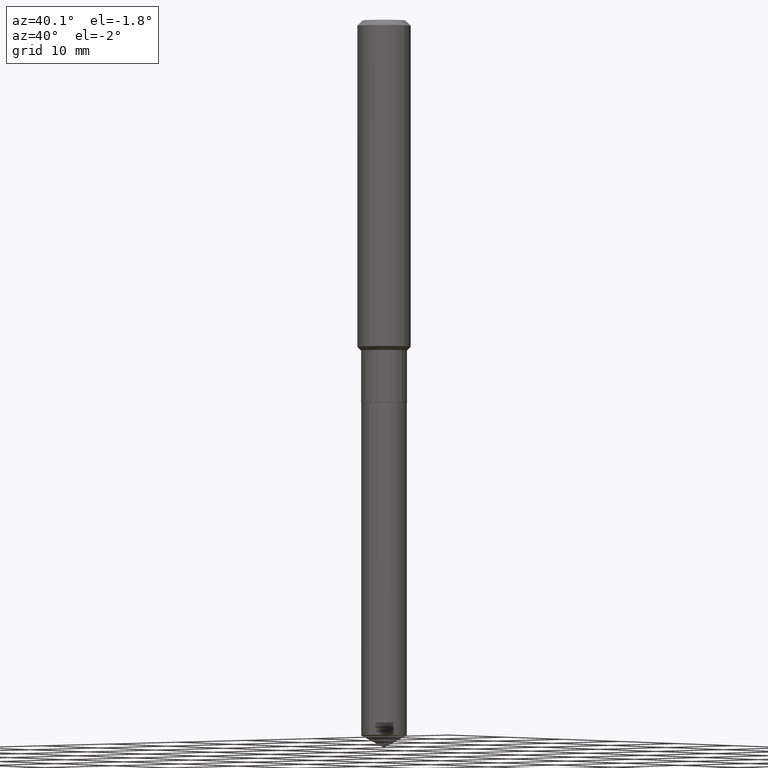
[diagram: clean part render]
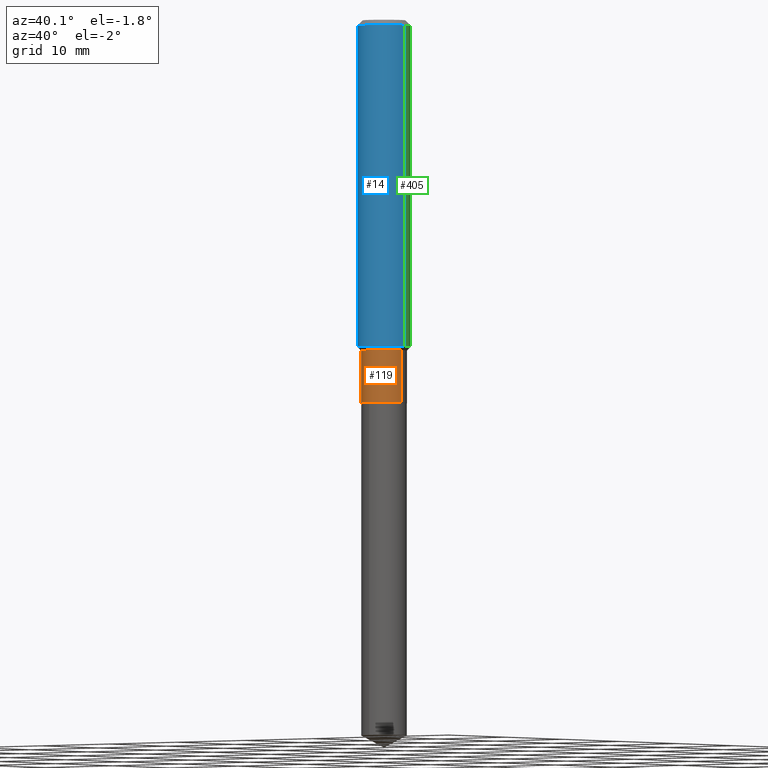
[diagram: same view with three faces highlighted in distinct colors, each labeled with its STEP entity id]
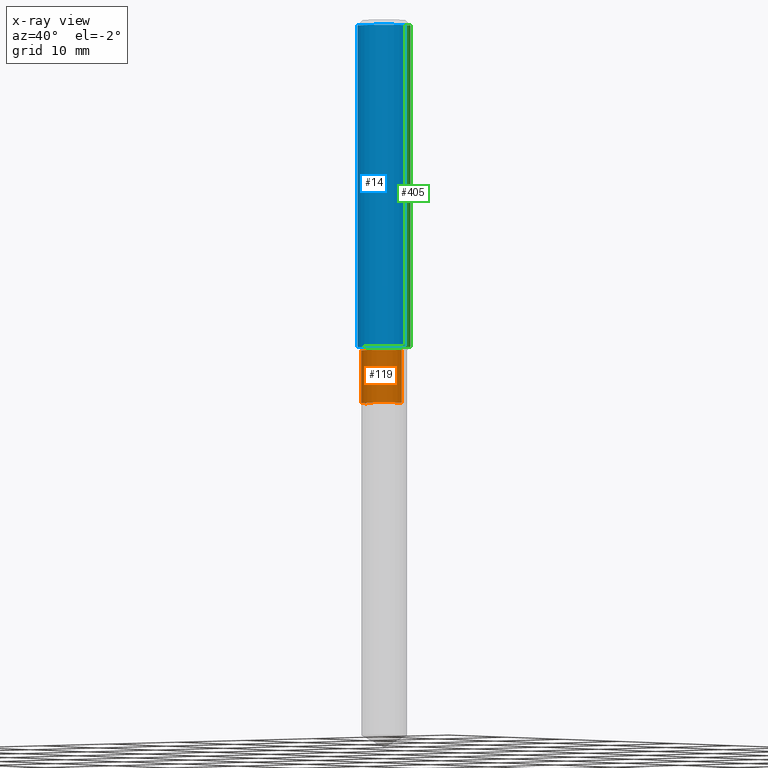
[diagram: x-ray of the same camera — body ghosted, the three highlighted faces saturated]
A machine part, auxiliary view with three faces highlighted in distinct colors.
The next image is the same camera in x-ray (body ghosted, the three faces saturated) — at least one of them is partly hidden behind the body in this view.
Their STEP definitions:

[orange] entity #119 — the highlighted cylindrical surface (edge-blend (fillet) strip) has radius 2.5794 mm, axis along (-0, 0, 1).
#11 = DIRECTION ( 'NONE',  ( 1.000000000000000000, -6.982962677686266711E-15, 0.000000000000000000 ) ) ;
#31 = EDGE_CURVE ( 'NONE', #77, #254, #470, .T. ) ;
#51 = CARTESIAN_POINT ( 'NONE',  ( 0.000000000000000000, 0.000000000000000000, 0.000000000000000000 ) ) ;
#52 = LINE ( 'NONE', #395, #117 ) ;
#55 = AXIS2_PLACEMENT_3D ( 'NONE', #201, #359, #11 ) ;
#66 = ORIENTED_EDGE ( 'NONE', *, *, #289, .F. ) ;
#77 = VERTEX_POINT ( 'NONE', #98 ) ;
#84 = CIRCLE ( 'NONE', #435, 0.1015500000000000014 ) ;
#87 = FACE_OUTER_BOUND ( 'NONE', #424, .T. ) ;
#90 = CARTESIAN_POINT ( 'NONE',  ( 0.1015499999999999736, -5.825885761993670479E-15, -1.465500000000000247 ) ) ;
#98 = CARTESIAN_POINT ( 'NONE',  ( 0.1015500000000000014, -6.639750062078007786E-15, -1.698600000000000332 ) ) ;
#104 = DIRECTION ( 'NONE',  ( 1.000000000000000000, -6.982962677686264344E-15, 0.000000000000000000 ) ) ;
#117 = VECTOR ( 'NONE', #158, 39.37007874015748143 ) ;
#119 = ADVANCED_FACE ( 'NONE', ( #87 ), #353, .T. ) ;
#147 = EDGE_CURVE ( 'NONE', #463, #77, #84, .T. ) ;
#149 = CARTESIAN_POINT ( 'NONE',  ( 4.153873314186073379E-29, -5.930630202158967793E-15, -1.698600000000000332 ) ) ;
#154 = AXIS2_PLACEMENT_3D ( 'NONE', #51, #200, #251 ) ;
#158 = DIRECTION ( 'NONE',  ( -2.445468806185136877E-29, 3.491481338843145188E-15, 1.000000000000000000 ) ) ;
#165 = CARTESIAN_POINT ( 'NONE',  ( -0.1015500000000000014, -4.802141903952417194E-15, -1.698600000000000332 ) ) ;
#200 = DIRECTION ( 'NONE',  ( -2.445468806185136597E-29, 3.491481338843145583E-15, 1.000000000000000000 ) ) ;
#201 = CARTESIAN_POINT ( 'NONE',  ( 3.583834535464318409E-29, -5.116765902074630486E-15, -1.465500000000000247 ) ) ;
#214 = ORIENTED_EDGE ( 'NONE', *, *, #147, .T. ) ;
#228 = ORIENTED_EDGE ( 'NONE', *, *, #305, .F. ) ;
#247 = CARTESIAN_POINT ( 'NONE',  ( 0.1015499999999999875, -7.091198599190402890E-16, 4.951757515820772372E-30 ) ) ;
#251 = DIRECTION ( 'NONE',  ( 1.000000000000000000, -6.982962677686266711E-15, 4.876176775795935793E-29 ) ) ;
#254 = VERTEX_POINT ( 'NONE', #90 ) ;
#289 = EDGE_CURVE ( 'NONE', #463, #468, #52, .T. ) ;
#290 = DIRECTION ( 'NONE',  ( -2.445468806185136877E-29, 3.491481338843145188E-15, 1.000000000000000000 ) ) ;
#305 = EDGE_CURVE ( 'NONE', #468, #254, #417, .T. ) ;
#353 = CYLINDRICAL_SURFACE ( 'NONE', #154, 0.1015499999999999875 ) ;
#359 = DIRECTION ( 'NONE',  ( -2.445468806185136597E-29, 3.491481338843145583E-15, 1.000000000000000000 ) ) ;
#360 = CARTESIAN_POINT ( 'NONE',  ( -0.1015499999999999736, -4.802141903952417194E-15, -1.465500000000000247 ) ) ;
#375 = DIRECTION ( 'NONE',  ( -2.445468806185136597E-29, 3.491481338843145583E-15, 1.000000000000000000 ) ) ;
#395 = CARTESIAN_POINT ( 'NONE',  ( -0.1015499999999999875, 7.215561481643816499E-16, -4.995178584153856401E-30 ) ) ;
#401 = VECTOR ( 'NONE', #290, 39.37007874015748143 ) ;
#417 = CIRCLE ( 'NONE', #55, 0.1015499999999999736 ) ;
#424 = EDGE_LOOP ( 'NONE', ( #66, #214, #447, #228 ) ) ;
#435 = AXIS2_PLACEMENT_3D ( 'NONE', #149, #375, #104 ) ;
#447 = ORIENTED_EDGE ( 'NONE', *, *, #31, .T. ) ;
#463 = VERTEX_POINT ( 'NONE', #165 ) ;
#468 = VERTEX_POINT ( 'NONE', #360 ) ;
#470 = LINE ( 'NONE', #247, #401 ) ;

[blue] entity #14 — the highlighted cylindrical surface (edge-blend (fillet) strip) has radius 2.9997 mm, axis along (-0, 0, 1).
#4 = ORIENTED_EDGE ( 'NONE', *, *, #102, .T. ) ;
#14 = ADVANCED_FACE ( 'NONE', ( #434 ), #244, .T. ) ;
#28 = CARTESIAN_POINT ( 'NONE',  ( -0.1181000000000001632, -4.219830914984096182E-15, -1.448950000000000182 ) ) ;
#32 = DIRECTION ( 'NONE',  ( 1.000000000000000000, -6.982962677686266711E-15, 0.000000000000000000 ) ) ;
#41 = DIRECTION ( 'NONE',  ( -2.445468806185136597E-29, 3.491481338843145583E-15, 1.000000000000000000 ) ) ;
#50 = ORIENTED_EDGE ( 'NONE', *, *, #256, .T. ) ;
#65 = CARTESIAN_POINT ( 'NONE',  ( 0.1181000000000001632, -5.883669778151525797E-15, -1.448950000000000182 ) ) ;
#70 = CARTESIAN_POINT ( 'NONE',  ( 5.776197320209327532E-31, -8.246878922347559293E-17, -0.02362000000000014088 ) ) ;
#97 = DIRECTION ( 'NONE',  ( -2.445468806185136877E-29, 3.491481338843145188E-15, 1.000000000000000000 ) ) ;
#102 = EDGE_CURVE ( 'NONE', #197, #233, #213, .T. ) ;
#103 = ORIENTED_EDGE ( 'NONE', *, *, #321, .F. ) ;
#115 = VECTOR ( 'NONE', #209, 39.37007874015748143 ) ;
#144 = CARTESIAN_POINT ( 'NONE',  ( -0.1180999999999999966, -1.731574366637446524E-15, -0.02362000000000014088 ) ) ;
#148 = VERTEX_POINT ( 'NONE', #144 ) ;
#170 = DIRECTION ( 'NONE',  ( -2.445468806185136597E-29, 3.491481338843145583E-15, 1.000000000000000000 ) ) ;
#185 = CARTESIAN_POINT ( 'NONE',  ( 0.1180999999999999966, -9.071566814582237199E-16, -0.02362000000000014088 ) ) ;
#191 = CIRCLE ( 'NONE', #379, 0.1180999999999999966 ) ;
#197 = VERTEX_POINT ( 'NONE', #65 ) ;
#202 = AXIS2_PLACEMENT_3D ( 'NONE', #399, #170, #475 ) ;
#209 = DIRECTION ( 'NONE',  ( -2.445468806185136877E-29, 3.491481338843145188E-15, 1.000000000000000000 ) ) ;
#213 = LINE ( 'NONE', #362, #115 ) ;
#231 = AXIS2_PLACEMENT_3D ( 'NONE', #402, #41, #237 ) ;
#233 = VERTEX_POINT ( 'NONE', #185 ) ;
#237 = DIRECTION ( 'NONE',  ( 1.000000000000000000, -6.982962677686263555E-15, 0.000000000000000000 ) ) ;
#244 = CYLINDRICAL_SURFACE ( 'NONE', #202, 0.1181000000000000799 ) ;
#248 = CIRCLE ( 'NONE', #231, 0.1181000000000001632 ) ;
#256 = EDGE_CURVE ( 'NONE', #332, #197, #248, .T. ) ;
#274 = ORIENTED_EDGE ( 'NONE', *, *, #413, .F. ) ;
#302 = VECTOR ( 'NONE', #97, 39.37007874015748143 ) ;
#321 = EDGE_CURVE ( 'NONE', #332, #148, #412, .T. ) ;
#332 = VERTEX_POINT ( 'NONE', #28 ) ;
#362 = CARTESIAN_POINT ( 'NONE',  ( 0.1181000000000000799, -8.246878922347486570E-16, 5.758764772215004644E-30 ) ) ;
#379 = AXIS2_PLACEMENT_3D ( 'NONE', #70, #381, #32 ) ;
#381 = DIRECTION ( 'NONE',  ( -2.445468806185136597E-29, 3.491481338843145583E-15, 1.000000000000000000 ) ) ;
#399 = CARTESIAN_POINT ( 'NONE',  ( 0.000000000000000000, 0.000000000000000000, 0.000000000000000000 ) ) ;
#402 = CARTESIAN_POINT ( 'NONE',  ( 3.543362026721954415E-29, -5.058981885916776746E-15, -1.448950000000000182 ) ) ;
#407 = CARTESIAN_POINT ( 'NONE',  ( -0.1181000000000000799, 8.391509709326788873E-16, -5.809262341591047988E-30 ) ) ;
#412 = LINE ( 'NONE', #407, #302 ) ;
#413 = EDGE_CURVE ( 'NONE', #148, #233, #191, .T. ) ;
#434 = FACE_OUTER_BOUND ( 'NONE', #452, .T. ) ;
#452 = EDGE_LOOP ( 'NONE', ( #103, #50, #4, #274 ) ) ;
#475 = DIRECTION ( 'NONE',  ( 1.000000000000000000, -6.982962677686266711E-15, 4.876176775795936353E-29 ) ) ;

[green] entity #405 — the highlighted cylindrical surface (edge-blend (fillet) strip) has radius 2.9997 mm, axis along (-0, 0, 1).
#20 = CIRCLE ( 'NONE', #378, 0.1181000000000001632 ) ;
#21 = AXIS2_PLACEMENT_3D ( 'NONE', #283, #436, #450 ) ;
#25 = ORIENTED_EDGE ( 'NONE', *, *, #321, .T. ) ;
#28 = CARTESIAN_POINT ( 'NONE',  ( -0.1181000000000001632, -4.219830914984096182E-15, -1.448950000000000182 ) ) ;
#65 = CARTESIAN_POINT ( 'NONE',  ( 0.1181000000000001632, -5.883669778151525797E-15, -1.448950000000000182 ) ) ;
#91 = CARTESIAN_POINT ( 'NONE',  ( 3.543362026721954415E-29, -5.058981885916776746E-15, -1.448950000000000182 ) ) ;
#95 = EDGE_CURVE ( 'NONE', #197, #332, #20, .T. ) ;
#97 = DIRECTION ( 'NONE',  ( -2.445468806185136877E-29, 3.491481338843145188E-15, 1.000000000000000000 ) ) ;
#102 = EDGE_CURVE ( 'NONE', #197, #233, #213, .T. ) ;
#109 = AXIS2_PLACEMENT_3D ( 'NONE', #243, #279, #324 ) ;
#115 = VECTOR ( 'NONE', #209, 39.37007874015748143 ) ;
#132 = DIRECTION ( 'NONE',  ( -2.445468806185136597E-29, 3.491481338843145583E-15, 1.000000000000000000 ) ) ;
#134 = CIRCLE ( 'NONE', #109, 0.1180999999999999966 ) ;
#137 = ORIENTED_EDGE ( 'NONE', *, *, #479, .F. ) ;
#144 = CARTESIAN_POINT ( 'NONE',  ( -0.1180999999999999966, -1.731574366637446524E-15, -0.02362000000000014088 ) ) ;
#148 = VERTEX_POINT ( 'NONE', #144 ) ;
#185 = CARTESIAN_POINT ( 'NONE',  ( 0.1180999999999999966, -9.071566814582237199E-16, -0.02362000000000014088 ) ) ;
#186 = EDGE_LOOP ( 'NONE', ( #449, #25, #137, #490 ) ) ;
#197 = VERTEX_POINT ( 'NONE', #65 ) ;
#209 = DIRECTION ( 'NONE',  ( -2.445468806185136877E-29, 3.491481338843145188E-15, 1.000000000000000000 ) ) ;
#213 = LINE ( 'NONE', #362, #115 ) ;
#233 = VERTEX_POINT ( 'NONE', #185 ) ;
#243 = CARTESIAN_POINT ( 'NONE',  ( 5.776197320209327532E-31, -8.246878922347559293E-17, -0.02362000000000014088 ) ) ;
#279 = DIRECTION ( 'NONE',  ( -2.445468806185136597E-29, 3.491481338843145583E-15, 1.000000000000000000 ) ) ;
#283 = CARTESIAN_POINT ( 'NONE',  ( 0.000000000000000000, 0.000000000000000000, 0.000000000000000000 ) ) ;
#302 = VECTOR ( 'NONE', #97, 39.37007874015748143 ) ;
#321 = EDGE_CURVE ( 'NONE', #332, #148, #412, .T. ) ;
#324 = DIRECTION ( 'NONE',  ( 1.000000000000000000, -6.982962677686266711E-15, 0.000000000000000000 ) ) ;
#332 = VERTEX_POINT ( 'NONE', #28 ) ;
#341 = FACE_OUTER_BOUND ( 'NONE', #186, .T. ) ;
#362 = CARTESIAN_POINT ( 'NONE',  ( 0.1181000000000000799, -8.246878922347486570E-16, 5.758764772215004644E-30 ) ) ;
#378 = AXIS2_PLACEMENT_3D ( 'NONE', #91, #132, #437 ) ;
#405 = ADVANCED_FACE ( 'NONE', ( #341 ), #483, .T. ) ;
#407 = CARTESIAN_POINT ( 'NONE',  ( -0.1181000000000000799, 8.391509709326788873E-16, -5.809262341591047988E-30 ) ) ;
#412 = LINE ( 'NONE', #407, #302 ) ;
#436 = DIRECTION ( 'NONE',  ( -2.445468806185136597E-29, 3.491481338843145583E-15, 1.000000000000000000 ) ) ;
#437 = DIRECTION ( 'NONE',  ( 1.000000000000000000, -6.982962677686263555E-15, 0.000000000000000000 ) ) ;
#449 = ORIENTED_EDGE ( 'NONE', *, *, #95, .T. ) ;
#450 = DIRECTION ( 'NONE',  ( 1.000000000000000000, -6.982962677686266711E-15, 4.876176775795936353E-29 ) ) ;
#479 = EDGE_CURVE ( 'NONE', #233, #148, #134, .T. ) ;
#483 = CYLINDRICAL_SURFACE ( 'NONE', #21, 0.1181000000000000799 ) ;
#490 = ORIENTED_EDGE ( 'NONE', *, *, #102, .F. ) ;